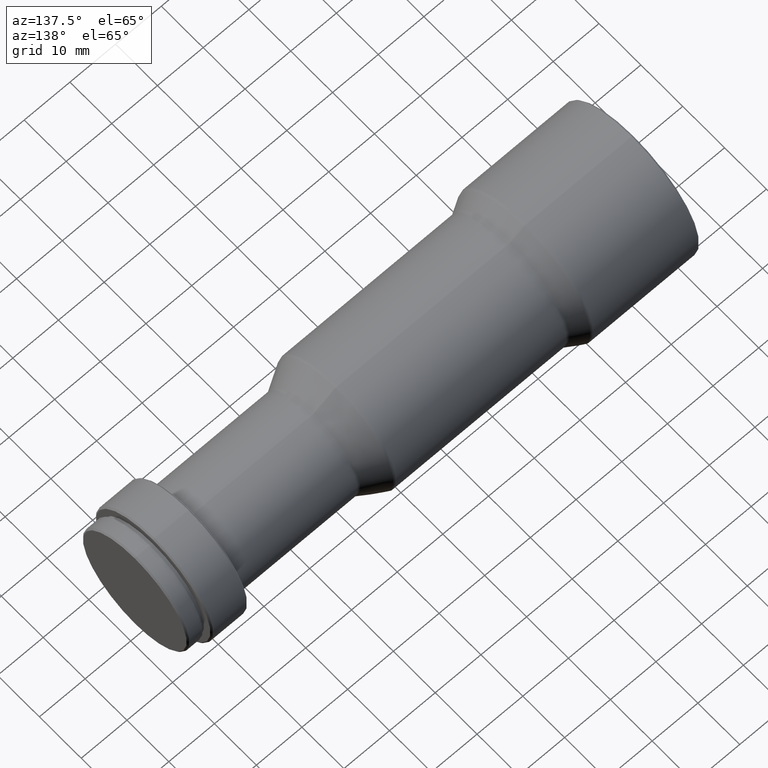
[diagram: clean part render]
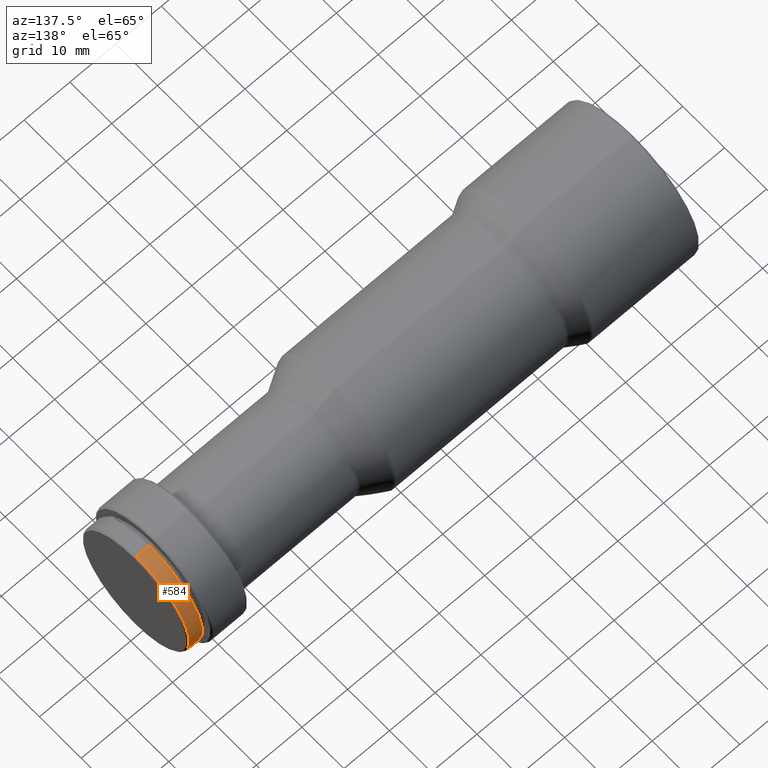
[diagram: same view with one face highlighted and labeled with its STEP entity id]
A machine part, auxiliary view. The second image highlights one B-rep face of the part: STEP entity #584.
In plain terms, the highlighted cylindrical surface (partial cylindrical patch) has radius 12.7 mm, axis along (-1, -0, -0).
Its self-contained STEP definition (entity closure, byte-faithful):
#10 = CARTESIAN_POINT ( 'NONE',  ( 0.0000000000000000000, 0.0000000000000000000, 12.70000000000000800 ) ) ;
#15 = CARTESIAN_POINT ( 'NONE',  ( 105.8999999999999900, 0.0000000000000000000, 0.0000000000000000000 ) ) ;
#21 = LINE ( 'NONE', #194, #769 ) ;
#24 = EDGE_CURVE ( 'NONE', #442, #951, #21, .T. ) ;
#100 = VECTOR ( 'NONE', #541, 1000.000000000000000 ) ;
#124 = ORIENTED_EDGE ( 'NONE', *, *, #271, .T. ) ;
#137 = FACE_OUTER_BOUND ( 'NONE', #467, .T. ) ;
#194 = CARTESIAN_POINT ( 'NONE',  ( 0.0000000000000000000, 1.555301434917139400E-015, -12.70000000000000800 ) ) ;
#201 = DIRECTION ( 'NONE',  ( 0.0000000000000000000, 0.0000000000000000000, 1.000000000000000000 ) ) ;
#217 = CYLINDRICAL_SURFACE ( 'NONE', #342, 12.70000000000000800 ) ;
#227 = CARTESIAN_POINT ( 'NONE',  ( 105.8999999999999900, 1.555301434917139400E-015, -12.70000000000000800 ) ) ;
#246 = EDGE_CURVE ( 'NONE', #478, #951, #249, .T. ) ;
#249 = CIRCLE ( 'NONE', #598, 12.70000000000000800 ) ;
#271 = EDGE_CURVE ( 'NONE', #930, #442, #540, .T. ) ;
#299 = DIRECTION ( 'NONE',  ( 0.0000000000000000000, 0.0000000000000000000, 1.000000000000000000 ) ) ;
#342 = AXIS2_PLACEMENT_3D ( 'NONE', #945, #785, #299 ) ;
#411 = DIRECTION ( 'NONE',  ( -1.000000000000000000, -0.0000000000000000000, -0.0000000000000000000 ) ) ;
#430 = DIRECTION ( 'NONE',  ( -1.000000000000000000, -0.0000000000000000000, -0.0000000000000000000 ) ) ;
#441 = AXIS2_PLACEMENT_3D ( 'NONE', #809, #411, #201 ) ;
#442 = VERTEX_POINT ( 'NONE', #667 ) ;
#444 = ORIENTED_EDGE ( 'NONE', *, *, #1016, .F. ) ;
#467 = EDGE_LOOP ( 'NONE', ( #124, #599, #627, #444 ) ) ;
#478 = VERTEX_POINT ( 'NONE', #503 ) ;
#503 = CARTESIAN_POINT ( 'NONE',  ( 105.8999999999999900, 0.0000000000000000000, 12.70000000000000800 ) ) ;
#540 = CIRCLE ( 'NONE', #441, 12.70000000000000800 ) ;
#541 = DIRECTION ( 'NONE',  ( -1.000000000000000000, -0.0000000000000000000, -0.0000000000000000000 ) ) ;
#584 = ADVANCED_FACE ( 'NONE', ( #137 ), #217, .T. ) ;
#598 = AXIS2_PLACEMENT_3D ( 'NONE', #15, #888, #955 ) ;
#599 = ORIENTED_EDGE ( 'NONE', *, *, #24, .T. ) ;
#610 = LINE ( 'NONE', #10, #100 ) ;
#627 = ORIENTED_EDGE ( 'NONE', *, *, #246, .F. ) ;
#667 = CARTESIAN_POINT ( 'NONE',  ( 108.8000000000000100, 1.555301434917139400E-015, -12.70000000000000800 ) ) ;
#769 = VECTOR ( 'NONE', #430, 1000.000000000000000 ) ;
#785 = DIRECTION ( 'NONE',  ( -1.000000000000000000, -0.0000000000000000000, -0.0000000000000000000 ) ) ;
#809 = CARTESIAN_POINT ( 'NONE',  ( 108.8000000000000100, 0.0000000000000000000, 0.0000000000000000000 ) ) ;
#848 = CARTESIAN_POINT ( 'NONE',  ( 108.8000000000000100, 0.0000000000000000000, 12.70000000000000800 ) ) ;
#888 = DIRECTION ( 'NONE',  ( -1.000000000000000000, -0.0000000000000000000, -0.0000000000000000000 ) ) ;
#930 = VERTEX_POINT ( 'NONE', #848 ) ;
#945 = CARTESIAN_POINT ( 'NONE',  ( 0.0000000000000000000, 0.0000000000000000000, 0.0000000000000000000 ) ) ;
#951 = VERTEX_POINT ( 'NONE', #227 ) ;
#955 = DIRECTION ( 'NONE',  ( 0.0000000000000000000, 0.0000000000000000000, 1.000000000000000000 ) ) ;
#1016 = EDGE_CURVE ( 'NONE', #930, #478, #610, .T. ) ;